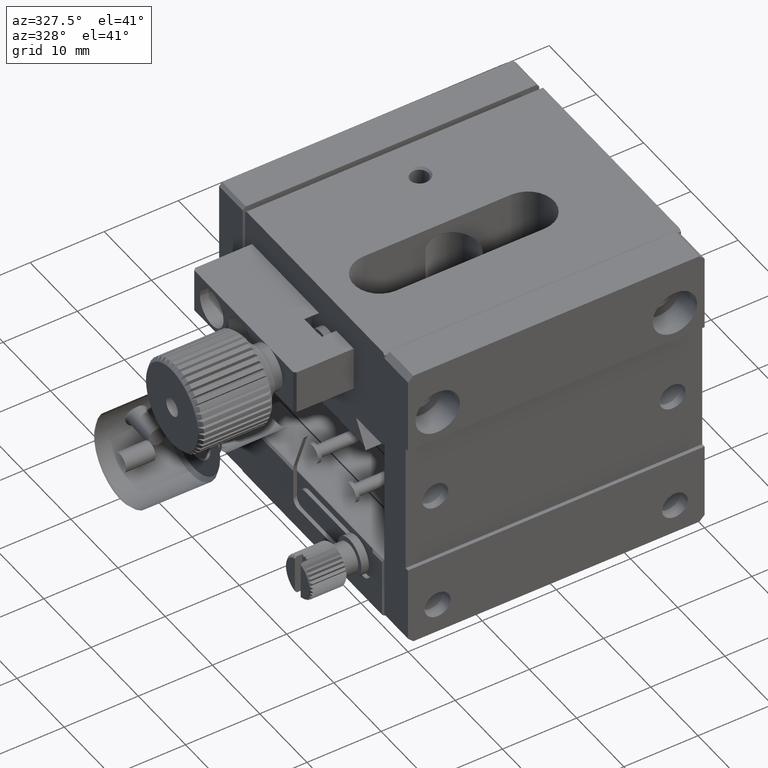
[diagram: clean part render]
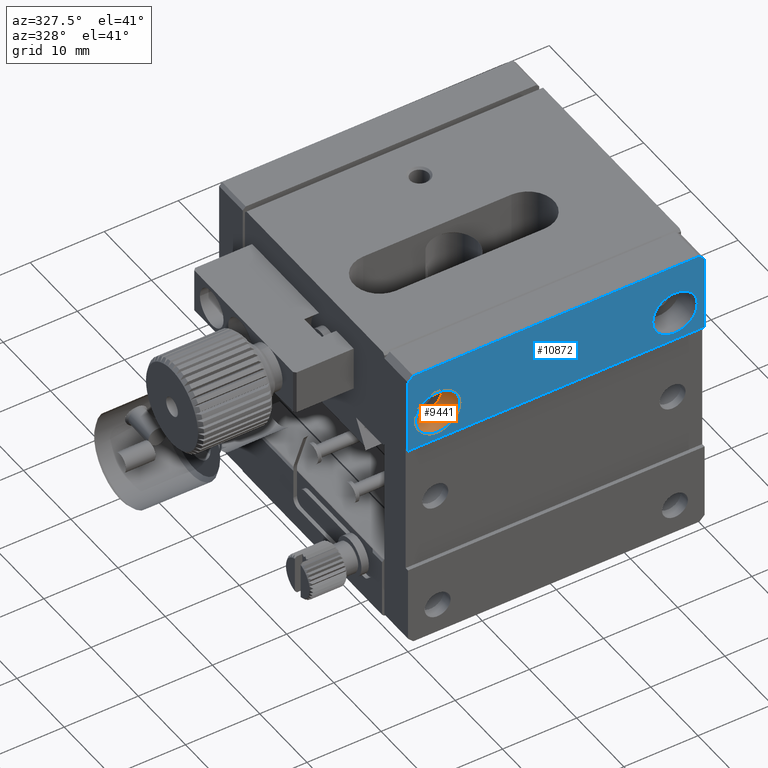
[diagram: same view with the hole feature highlighted: cylindrical wall and planar end face, labeled with their STEP entity ids]
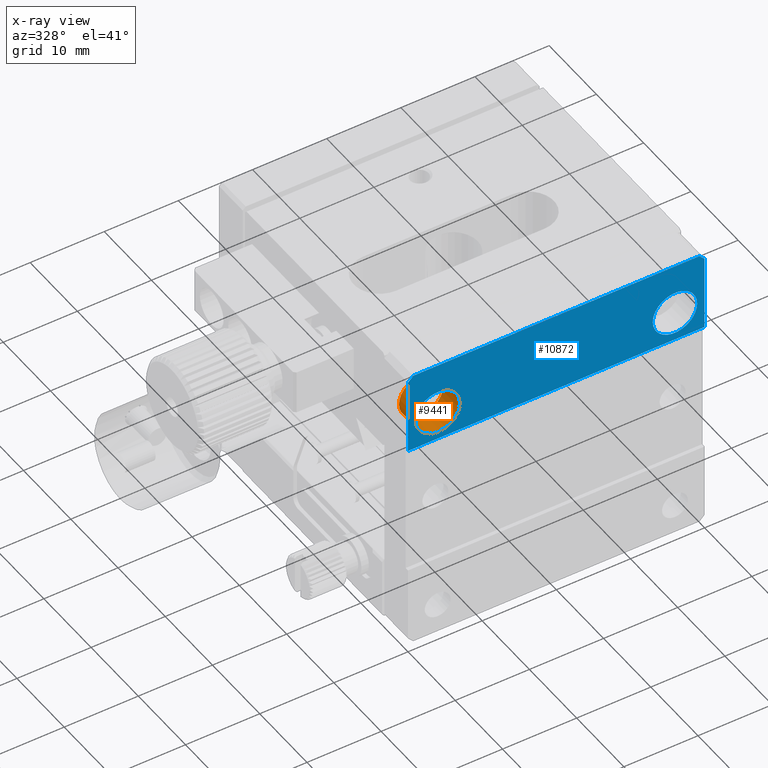
[diagram: x-ray of the same camera — body ghosted, the hole faces saturated]
A machine part, auxiliary view. The highlighted faces form one hole feature of diameter 6 mm: the cylindrical wall (entity #9441, orange) and its adjacent planar end face (entity #10872, blue) — they share a circular edge in the B-rep.
The next image is the same camera in x-ray (body ghosted, the hole faces saturated) — the bore reads through the body.
Wall:
#244 = CIRCLE ( 'NONE', #17154, 3.000000000000000000 ) ;
#394 = DIRECTION ( 'NONE',  ( 0.000000000000000000, -1.000000000000000000, 0.000000000000000000 ) ) ;
#474 = ORIENTED_EDGE ( 'NONE', *, *, #14956, .T. ) ;
#718 = VERTEX_POINT ( 'NONE', #11124 ) ;
#1345 = AXIS2_PLACEMENT_3D ( 'NONE', #13828, #394, #15408 ) ;
#2447 = AXIS2_PLACEMENT_3D ( 'NONE', #15131, #4438, #15225 ) ;
#4438 = DIRECTION ( 'NONE',  ( 0.000000000000000000, -1.000000000000000000, 0.000000000000000000 ) ) ;
#4813 = CYLINDRICAL_SURFACE ( 'NONE', #1345, 3.000000000000000000 ) ;
#5012 = FACE_OUTER_BOUND ( 'NONE', #7567, .T. ) ;
#7567 = EDGE_LOOP ( 'NONE', ( #474 ) ) ;
#8157 = ORIENTED_EDGE ( 'NONE', *, *, #8605, .F. ) ;
#8605 = EDGE_CURVE ( 'NONE', #718, #718, #9652, .T. ) ;
#8969 = CARTESIAN_POINT ( 'NONE',  ( 1.000000000000000000, 0.000000000000000000, -7.000000000000000000 ) ) ;
#9441 = ADVANCED_FACE ( 'NONE', ( #18260, #5012 ), #4813, .F. ) ;
#9652 = CIRCLE ( 'NONE', #2447, 3.000000000000000000 ) ;
#11124 = CARTESIAN_POINT ( 'NONE',  ( 1.000000000000000000, 3.500000000000000000, -7.000000000000000000 ) ) ;
#13828 = CARTESIAN_POINT ( 'NONE',  ( 4.000000000000000000, 0.000000000000000000, -7.000000000000000000 ) ) ;
#13946 = CARTESIAN_POINT ( 'NONE',  ( 4.000000000000000000, 0.000000000000000000, -7.000000000000000000 ) ) ;
#14737 = VERTEX_POINT ( 'NONE', #8969 ) ;
#14956 = EDGE_CURVE ( 'NONE', #14737, #14737, #244, .T. ) ;
#15131 = CARTESIAN_POINT ( 'NONE',  ( 4.000000000000000000, 3.500000000000000000, -7.000000000000000000 ) ) ;
#15225 = DIRECTION ( 'NONE',  ( -1.000000000000000000, 0.000000000000000000, 0.000000000000000000 ) ) ;
#15408 = DIRECTION ( 'NONE',  ( -1.000000000000000000, 0.000000000000000000, 0.000000000000000000 ) ) ;
#15433 = DIRECTION ( 'NONE',  ( 0.000000000000000000, -1.000000000000000000, 0.000000000000000000 ) ) ;
#15713 = DIRECTION ( 'NONE',  ( -1.000000000000000000, 0.000000000000000000, 0.000000000000000000 ) ) ;
#17154 = AXIS2_PLACEMENT_3D ( 'NONE', #13946, #15433, #15713 ) ;
#18224 = EDGE_LOOP ( 'NONE', ( #8157 ) ) ;
#18260 = FACE_OUTER_BOUND ( 'NONE', #18224, .T. ) ;
End face:
#70 = DIRECTION ( 'NONE',  ( 0.000000000000000000, 0.000000000000000000, -1.000000000000000000 ) ) ;
#244 = CIRCLE ( 'NONE', #17154, 3.000000000000000000 ) ;
#871 = DIRECTION ( 'NONE',  ( 0.000000000000000000, 0.000000000000000000, -1.000000000000000000 ) ) ;
#1211 = CARTESIAN_POINT ( 'NONE',  ( 0.000000000000000000, 0.000000000000000000, -0.7100000000000019629 ) ) ;
#1254 = DIRECTION ( 'NONE',  ( -1.000000000000000000, -0.000000000000000000, -0.000000000000000000 ) ) ;
#1876 = EDGE_CURVE ( 'NONE', #7997, #16368, #10559, .T. ) ;
#2206 = EDGE_CURVE ( 'NONE', #16266, #9131, #8741, .T. ) ;
#2349 = VERTEX_POINT ( 'NONE', #2990 ) ;
#2353 = ORIENTED_EDGE ( 'NONE', *, *, #14499, .F. ) ;
#2583 = DIRECTION ( 'NONE',  ( 1.000000000000000000, 0.000000000000000000, 0.000000000000000000 ) ) ;
#2783 = CARTESIAN_POINT ( 'NONE',  ( 0.000000000000000000, 0.000000000000000000, 0.000000000000000000 ) ) ;
#2832 = CARTESIAN_POINT ( 'NONE',  ( -2.473336205982554525E-16, 0.000000000000000000, -0.7100000000000016298 ) ) ;
#2885 = EDGE_LOOP ( 'NONE', ( #7633 ) ) ;
#2927 = ORIENTED_EDGE ( 'NONE', *, *, #13132, .F. ) ;
#2990 = CARTESIAN_POINT ( 'NONE',  ( 0.7099999999999999645, 0.000000000000000000, -5.421010862427522170E-17 ) ) ;
#3533 = EDGE_LOOP ( 'NONE', ( #9413 ) ) ;
#3654 = AXIS2_PLACEMENT_3D ( 'NONE', #15411, #12272, #18460 ) ;
#4116 = CARTESIAN_POINT ( 'NONE',  ( 0.000000000000000000, 0.000000000000000000, -11.00000000000000000 ) ) ;
#4216 = CARTESIAN_POINT ( 'NONE',  ( 0.000000000000000000, 0.000000000000000000, 0.000000000000000000 ) ) ;
#4248 = CARTESIAN_POINT ( 'NONE',  ( 33.00000000000000000, 0.000000000000000000, -6.999999999999990230 ) ) ;
#4346 = VECTOR ( 'NONE', #871, 1000.000000000000000 ) ;
#4679 = DIRECTION ( 'NONE',  ( 0.7071067811865486830, 0.000000000000000000, -0.7071067811865464625 ) ) ;
#4779 = PLANE ( 'NONE',  #8264 ) ;
#5108 = EDGE_CURVE ( 'NONE', #16849, #2349, #11427, .T. ) ;
#5856 = VECTOR ( 'NONE', #70, 1000.000000000000000 ) ;
#6337 = VECTOR ( 'NONE', #4679, 1000.000000000000000 ) ;
#7068 = ORIENTED_EDGE ( 'NONE', *, *, #1876, .F. ) ;
#7633 = ORIENTED_EDGE ( 'NONE', *, *, #15333, .F. ) ;
#7997 = VERTEX_POINT ( 'NONE', #8209 ) ;
#8006 = ORIENTED_EDGE ( 'NONE', *, *, #2206, .F. ) ;
#8209 = CARTESIAN_POINT ( 'NONE',  ( 39.28999999999999204, 0.000000000000000000, 4.336808689942018722E-16 ) ) ;
#8264 = AXIS2_PLACEMENT_3D ( 'NONE', #10859, #9297, #15280 ) ;
#8535 = VECTOR ( 'NONE', #1254, 1000.000000000000000 ) ;
#8741 = LINE ( 'NONE', #4116, #8535 ) ;
#8969 = CARTESIAN_POINT ( 'NONE',  ( 1.000000000000000000, 0.000000000000000000, -7.000000000000000000 ) ) ;
#8991 = EDGE_CURVE ( 'NONE', #16849, #9131, #14703, .T. ) ;
#9111 = CARTESIAN_POINT ( 'NONE',  ( 40.00000000000000000, 0.000000000000000000, 0.000000000000000000 ) ) ;
#9131 = VERTEX_POINT ( 'NONE', #10488 ) ;
#9297 = DIRECTION ( 'NONE',  ( -0.000000000000000000, 1.000000000000000000, 0.000000000000000000 ) ) ;
#9355 = ORIENTED_EDGE ( 'NONE', *, *, #8991, .T. ) ;
#9413 = ORIENTED_EDGE ( 'NONE', *, *, #14956, .F. ) ;
#9739 = FACE_OUTER_BOUND ( 'NONE', #15721, .T. ) ;
#10048 = DIRECTION ( 'NONE',  ( 0.7071067811865465735, 0.000000000000000000, 0.7071067811865485719 ) ) ;
#10488 = CARTESIAN_POINT ( 'NONE',  ( 0.000000000000000000, 0.000000000000000000, -11.00000000000000000 ) ) ;
#10559 = LINE ( 'NONE', #11839, #6337 ) ;
#10859 = CARTESIAN_POINT ( 'NONE',  ( 0.000000000000000000, 0.000000000000000000, 0.000000000000000000 ) ) ;
#10872 = ADVANCED_FACE ( 'NONE', ( #9739, #11214, #14242 ), #4779, .F. ) ;
#11214 = FACE_BOUND ( 'NONE', #2885, .T. ) ;
#11427 = LINE ( 'NONE', #1211, #17382 ) ;
#11839 = CARTESIAN_POINT ( 'NONE',  ( 39.28999999999999915, 0.000000000000000000, 0.000000000000000000 ) ) ;
#12046 = LINE ( 'NONE', #9111, #5856 ) ;
#12272 = DIRECTION ( 'NONE',  ( 0.000000000000000000, -1.000000000000000000, 0.000000000000000000 ) ) ;
#13061 = VERTEX_POINT ( 'NONE', #4248 ) ;
#13132 = EDGE_CURVE ( 'NONE', #2349, #7997, #19077, .T. ) ;
#13946 = CARTESIAN_POINT ( 'NONE',  ( 4.000000000000000000, 0.000000000000000000, -7.000000000000000000 ) ) ;
#14242 = FACE_BOUND ( 'NONE', #3533, .T. ) ;
#14499 = EDGE_CURVE ( 'NONE', #16368, #16266, #12046, .T. ) ;
#14703 = LINE ( 'NONE', #4216, #4346 ) ;
#14737 = VERTEX_POINT ( 'NONE', #8969 ) ;
#14956 = EDGE_CURVE ( 'NONE', #14737, #14737, #244, .T. ) ;
#15280 = DIRECTION ( 'NONE',  ( 1.000000000000000000, 0.000000000000000000, 0.000000000000000000 ) ) ;
#15333 = EDGE_CURVE ( 'NONE', #13061, #13061, #17116, .T. ) ;
#15411 = CARTESIAN_POINT ( 'NONE',  ( 36.00000000000000711, 0.000000000000000000, -6.999999999999990230 ) ) ;
#15433 = DIRECTION ( 'NONE',  ( 0.000000000000000000, -1.000000000000000000, 0.000000000000000000 ) ) ;
#15713 = DIRECTION ( 'NONE',  ( -1.000000000000000000, 0.000000000000000000, 0.000000000000000000 ) ) ;
#15721 = EDGE_LOOP ( 'NONE', ( #2353, #7068, #2927, #18750, #9355, #8006 ) ) ;
#16099 = CARTESIAN_POINT ( 'NONE',  ( 40.00000000000000000, 0.000000000000000000, -11.00000000000000000 ) ) ;
#16136 = VECTOR ( 'NONE', #2583, 1000.000000000000000 ) ;
#16266 = VERTEX_POINT ( 'NONE', #16099 ) ;
#16368 = VERTEX_POINT ( 'NONE', #17473 ) ;
#16849 = VERTEX_POINT ( 'NONE', #2832 ) ;
#17116 = CIRCLE ( 'NONE', #3654, 3.000000000000002665 ) ;
#17154 = AXIS2_PLACEMENT_3D ( 'NONE', #13946, #15433, #15713 ) ;
#17382 = VECTOR ( 'NONE', #10048, 1000.000000000000000 ) ;
#17473 = CARTESIAN_POINT ( 'NONE',  ( 40.00000000000000000, 0.000000000000000000, -0.7099999999999999645 ) ) ;
#18460 = DIRECTION ( 'NONE',  ( -1.000000000000000000, 0.000000000000000000, 0.000000000000000000 ) ) ;
#18750 = ORIENTED_EDGE ( 'NONE', *, *, #5108, .F. ) ;
#19077 = LINE ( 'NONE', #2783, #16136 ) ;